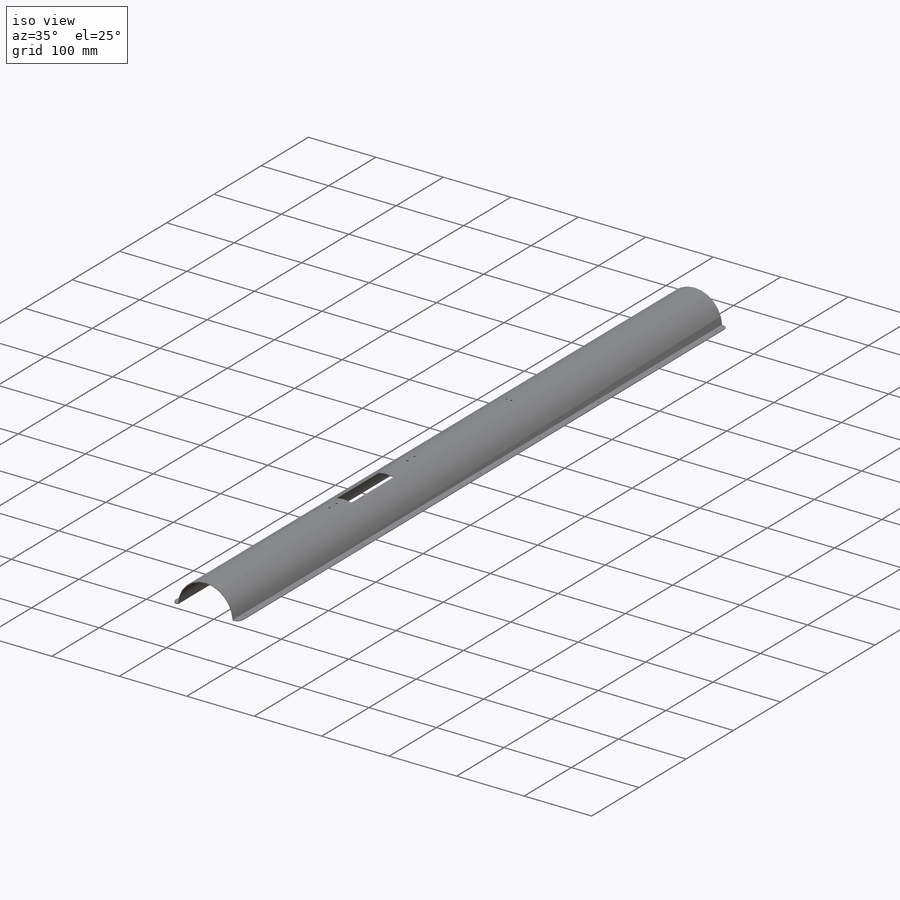
[diagram: iso view]
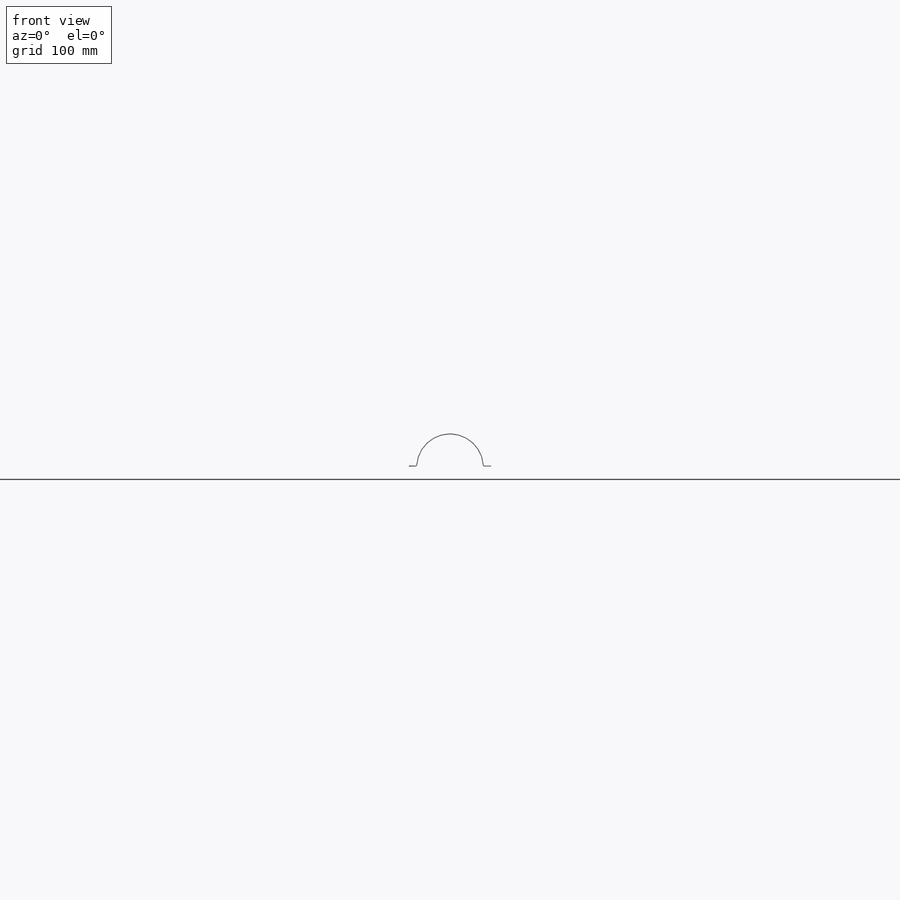
[diagram: front view]
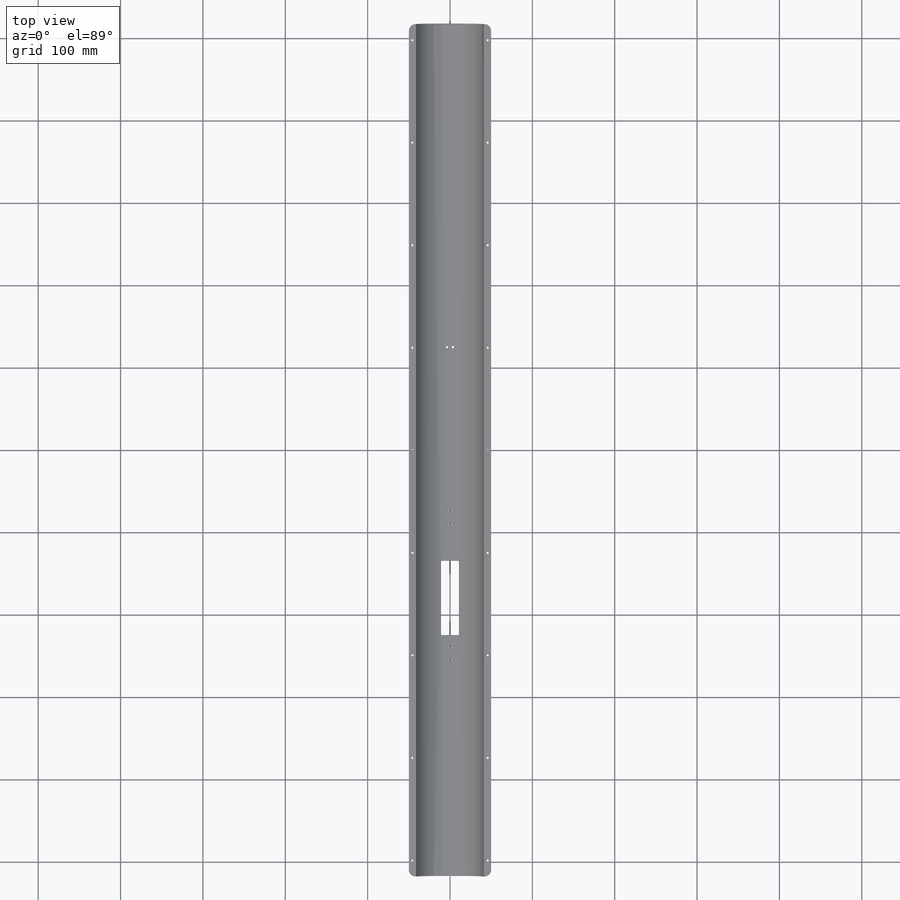
[diagram: top view]
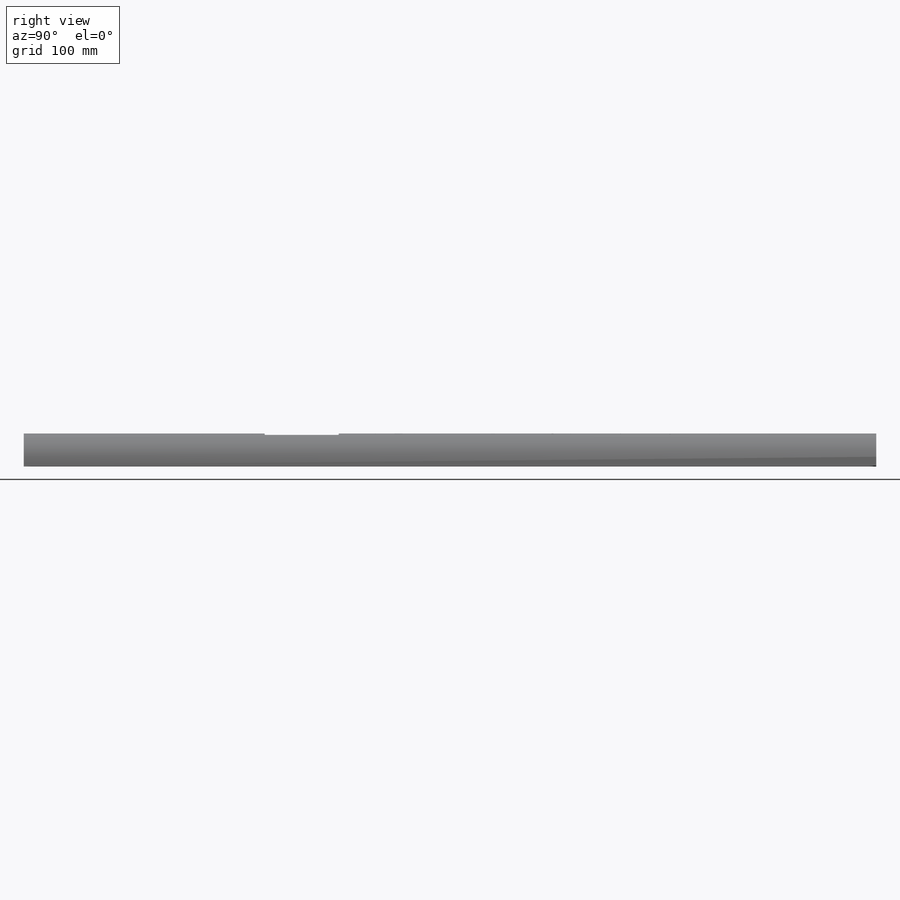
[diagram: right view]
SOLIDWORKS PART (.sldprt)
format: sldprt  version: not decoded by parser v0  size: 531,456 bytes
history: native  units: mm
features: sketch x11, sheet_metal_op x4, hole x3, fillet x2, mirror x2, material x1, cut_extrude x1, pattern_linear x1, plane x1 + 3 further entries (+11 scaffold rows collapsed; 1 parser-record rows omitted)
feature tree (41):
  scaffold x11  (default folders/planes/origin — collapsed)
  material  "6061-T6 (SS)"
  sketch  "Sketch1"  dims[D1=80.0mm D2=10.0mm D3=1.016mm]
  sheet_metal_op  "Sheet-Metal1"
  sheet_metal_op  "Base-Flange1"
  sheet_metal_op  "BaseBend2"
  sheet_metal_op  "BaseBend3"
  fillet  "Fillet1"  Radius=8mm
  sketch  "Sketch2"  dims[D1=135.0mm D2=90.0mm D3=22.0mm]
  cut_extrude  "Cut-Extrude2"  [1 undecoded]
  fillet  "Fillet2"  Radius=1mm
  hole  "CSK for #2 Flat Head Machine Screw6"  Diameter=2.4384mm Depth=1.016mm
  sketch  "3DSketch1"  dims[D1=15.0mm]
  sketch  "Sketch5"  dims[hole-wizard template sketch: 55 standard entries collapsed; hole parameters kept: c17.Thru Hole Depth=1.016mm c17.Near C'Sink Dia.=4.3688mm c17.D4=~3.666174mm c17.Near C'Sink Angle=82.0deg]
  hole  "#2 Clearance Hole1"  Diameter=2.4384mm Depth=40mm
  sketch  "Sketch7"  dims[D1=4.2705mm D2=19.5mm]
  sketch  "Sketch6"  dims[hole-wizard template sketch: 55 standard entries collapsed; hole parameters kept: c17.Thru Hole Depth=40.0mm c17.Near C'Sink Dia.=2.794mm c17.D4=~3.666174mm c17.Near C'Sink Angle=82.0deg]
  pattern_linear  "LPattern1"  Count1=9 Count2=1 Spacing1=124.5mm Spacing2=10mm
  mirror  "Mirror1"
  plane  "Plane1"  Offset=124.5mm
  sketch  "Sketch9"  dims[c1.D1=~102.121128mm c2.D1=5.0061deg]
  hole  "CSK for #2 Flat Head Machine Screw7"  Diameter=2.4384mm Depth=5.221505mm
  sketch  "3DSketch2"  dims[D1=~122.381644mm D2=~126.764395mm D3=~126.764395mm]
  sketch  "Sketch8"  dims[hole-wizard template sketch: 55 standard entries collapsed; hole parameters kept: c17.Thru Hole Depth=~5.221505mm c17.Near C'Sink Dia.=4.3688mm c17.D4=~3.666174mm c17.Near C'Sink Angle=82.0deg]
  mirror  "Mirror2"
  "Flat-Pattern1"
  sketch  "Bend-Lines1"
  sketch  "Bounding-Box1"
  "Flatten-<BaseBend2>1"
  "Flatten-<BaseBend3>1"
  parser-record x1  (decoder bookkeeping rows leaked as tree rows — omitted from the tree; the rows remain in map.json)
decode coverage: 15 of 24 modeling features carry decoded parameters; 3 rows unclassified (native names shown)
note: ~ marks probable driven/reference dimensions
note: 1 parameter value undecoded
note: suppression state not decoded; provenance and decode notes live in map.json
